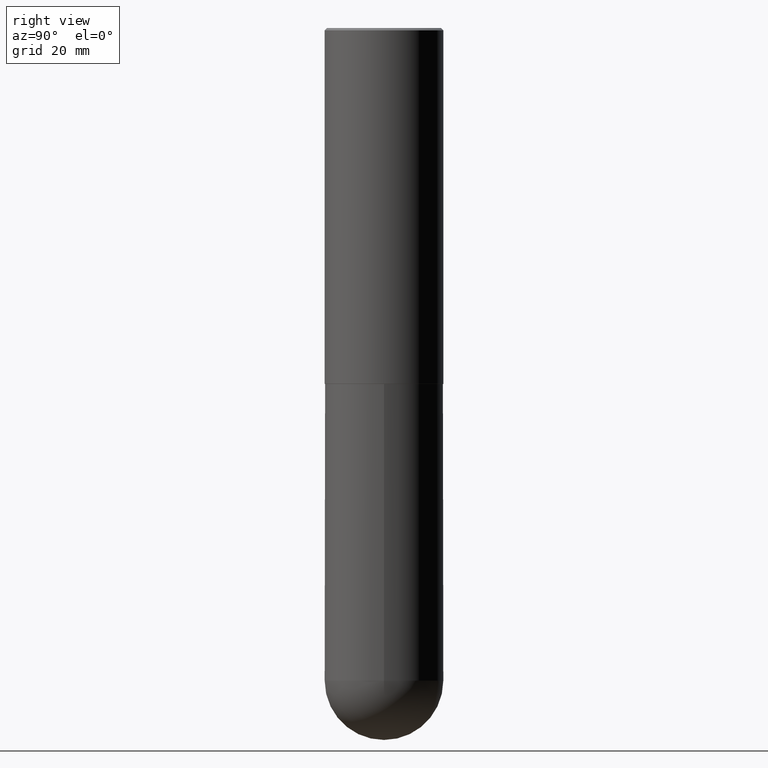
[diagram: clean part render]
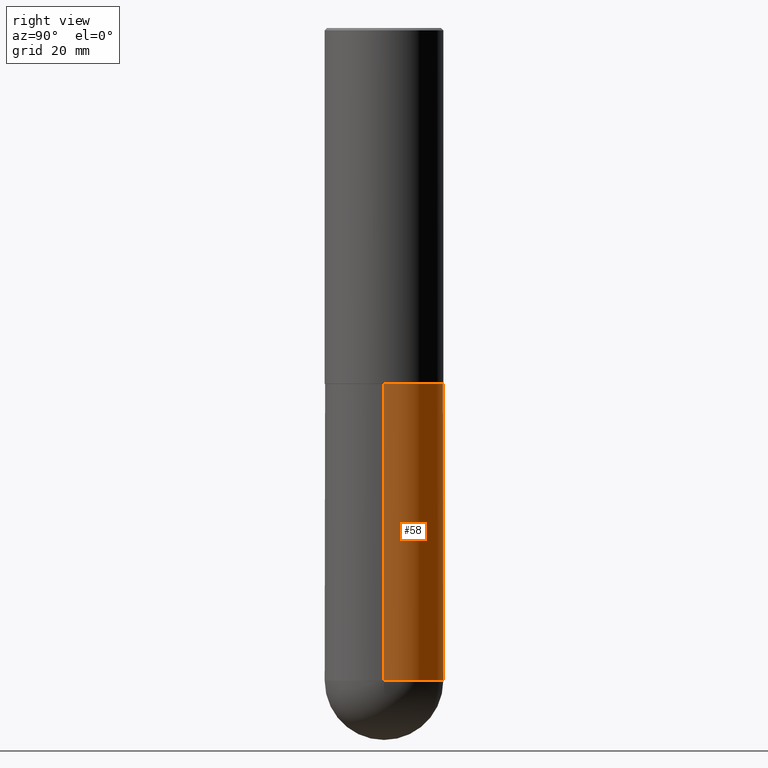
[diagram: same view with one face highlighted and labeled with its STEP entity id]
A machine part, right view. The second image highlights one B-rep face of the part: STEP entity #58.
In plain terms, the highlighted cylindrical surface (partial cylindrical patch) has radius 12.7 mm, axis along (-0, 0, 1).
Its self-contained STEP definition (entity closure, byte-faithful):
#8 = EDGE_CURVE ( 'NONE', #223, #323, #102, .T. ) ;
#17 = DIRECTION ( 'NONE',  ( 1.000000000000000000, -6.982962677686266711E-15, 0.000000000000000000 ) ) ;
#21 = CARTESIAN_POINT ( 'NONE',  ( 7.336406418555409790E-29, -1.047444401652943635E-14, -3.000000000000000444 ) ) ;
#36 = CARTESIAN_POINT ( 'NONE',  ( 3.491481338843267462E-15, 0.4999999999999808487, -5.500000000000002665 ) ) ;
#48 = CARTESIAN_POINT ( 'NONE',  ( -0.5000000000000000000, -1.128608201128287263E-14, -5.500000000000000888 ) ) ;
#54 = VERTEX_POINT ( 'NONE', #317 ) ;
#58 = ADVANCED_FACE ( 'NONE', ( #224 ), #347, .T. ) ;
#62 = VERTEX_POINT ( 'NONE', #48 ) ;
#77 = ORIENTED_EDGE ( 'NONE', *, *, #189, .F. ) ;
#78 = CARTESIAN_POINT ( 'NONE',  ( 0.5000000000000000000, -1.396592535537257129E-14, -3.000000000000000444 ) ) ;
#102 = CIRCLE ( 'NONE', #153, 0.5000000000000000000 ) ;
#104 = CIRCLE ( 'NONE', #378, 0.5000000000000000000 ) ;
#123 = EDGE_CURVE ( 'NONE', #62, #323, #285, .T. ) ;
#140 = DIRECTION ( 'NONE',  ( 1.000000000000000000, -6.982962677686266711E-15, 4.876176775795935793E-29 ) ) ;
#152 = EDGE_CURVE ( 'NONE', #54, #314, #327, .T. ) ;
#153 = AXIS2_PLACEMENT_3D ( 'NONE', #21, #297, #17 ) ;
#161 = DIRECTION ( 'NONE',  ( -2.445468806185136597E-29, 3.491481338843145583E-15, 1.000000000000000000 ) ) ;
#162 = DIRECTION ( 'NONE',  ( 1.000000000000000000, -6.982962677686270655E-15, 0.000000000000000000 ) ) ;
#172 = LINE ( 'NONE', #289, #253 ) ;
#180 = CARTESIAN_POINT ( 'NONE',  ( 0.000000000000000000, 0.000000000000000000, 0.000000000000000000 ) ) ;
#189 = EDGE_CURVE ( 'NONE', #54, #223, #172, .T. ) ;
#198 = DIRECTION ( 'NONE',  ( -2.445468806185136877E-29, 3.491481338843145188E-15, 1.000000000000000000 ) ) ;
#204 = ORIENTED_EDGE ( 'NONE', *, *, #123, .T. ) ;
#206 = VECTOR ( 'NONE', #391, 39.37007874015748143 ) ;
#213 = AXIS2_PLACEMENT_3D ( 'NONE', #273, #337, #162 ) ;
#223 = VERTEX_POINT ( 'NONE', #78 ) ;
#224 = FACE_OUTER_BOUND ( 'NONE', #281, .T. ) ;
#253 = VECTOR ( 'NONE', #198, 39.37007874015748143 ) ;
#256 = ORIENTED_EDGE ( 'NONE', *, *, #394, .T. ) ;
#259 = CARTESIAN_POINT ( 'NONE',  ( 1.345007843401825128E-28, -1.920314736363730603E-14, -5.500000000000000888 ) ) ;
#266 = ORIENTED_EDGE ( 'NONE', *, *, #152, .T. ) ;
#273 = CARTESIAN_POINT ( 'NONE',  ( 1.345007843401825128E-28, -1.920314736363730603E-14, -5.500000000000000888 ) ) ;
#275 = DIRECTION ( 'NONE',  ( 1.000000000000000000, -6.982962677686270655E-15, 0.000000000000000000 ) ) ;
#281 = EDGE_LOOP ( 'NONE', ( #256, #204, #336, #77, #266 ) ) ;
#285 = LINE ( 'NONE', #353, #206 ) ;
#289 = CARTESIAN_POINT ( 'NONE',  ( 0.5000000000000000000, -3.491481338843133355E-15, 2.438088387897967896E-29 ) ) ;
#293 = DIRECTION ( 'NONE',  ( -2.445468806185136597E-29, 3.491481338843145583E-15, 1.000000000000000000 ) ) ;
#297 = DIRECTION ( 'NONE',  ( -2.445468806185136597E-29, 3.491481338843145583E-15, 1.000000000000000000 ) ) ;
#312 = AXIS2_PLACEMENT_3D ( 'NONE', #180, #293, #140 ) ;
#314 = VERTEX_POINT ( 'NONE', #36 ) ;
#317 = CARTESIAN_POINT ( 'NONE',  ( 0.5000000000000000000, -1.833027702892651007E-14, -5.500000000000000888 ) ) ;
#323 = VERTEX_POINT ( 'NONE', #409 ) ;
#327 = CIRCLE ( 'NONE', #213, 0.5000000000000000000 ) ;
#336 = ORIENTED_EDGE ( 'NONE', *, *, #8, .F. ) ;
#337 = DIRECTION ( 'NONE',  ( -2.445468806185136597E-29, 3.491481338843145583E-15, 1.000000000000000000 ) ) ;
#347 = CYLINDRICAL_SURFACE ( 'NONE', #312, 0.5000000000000000000 ) ;
#353 = CARTESIAN_POINT ( 'NONE',  ( -0.5000000000000000000, 3.552713678800500929E-15, -2.459467545127452891E-29 ) ) ;
#378 = AXIS2_PLACEMENT_3D ( 'NONE', #259, #161, #275 ) ;
#391 = DIRECTION ( 'NONE',  ( -2.445468806185136877E-29, 3.491481338843145188E-15, 1.000000000000000000 ) ) ;
#394 = EDGE_CURVE ( 'NONE', #314, #62, #104, .T. ) ;
#409 = CARTESIAN_POINT ( 'NONE',  ( -0.5000000000000000000, -1.128608201128286947E-14, -3.000000000000000444 ) ) ;